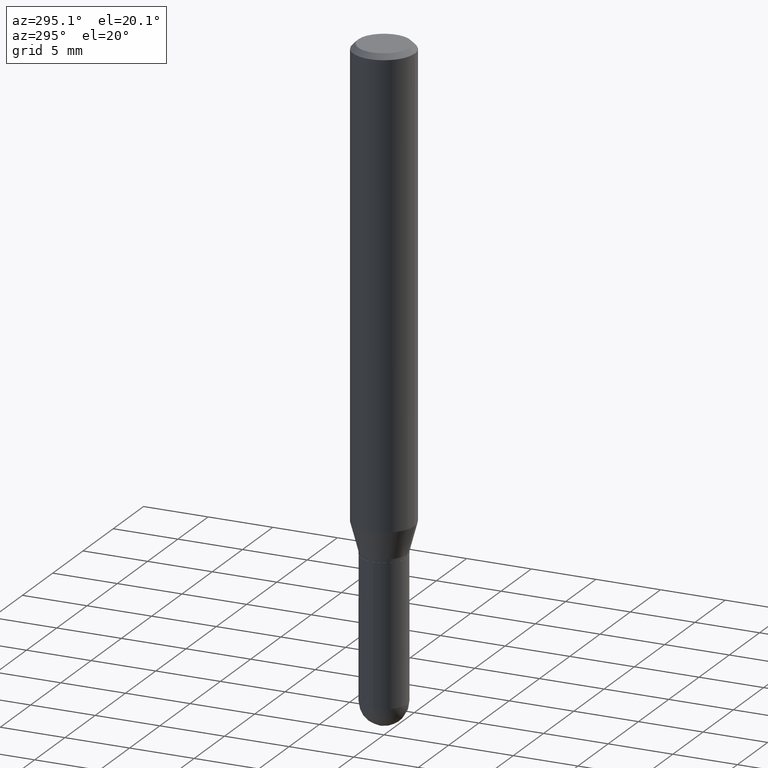
[diagram: clean part render]
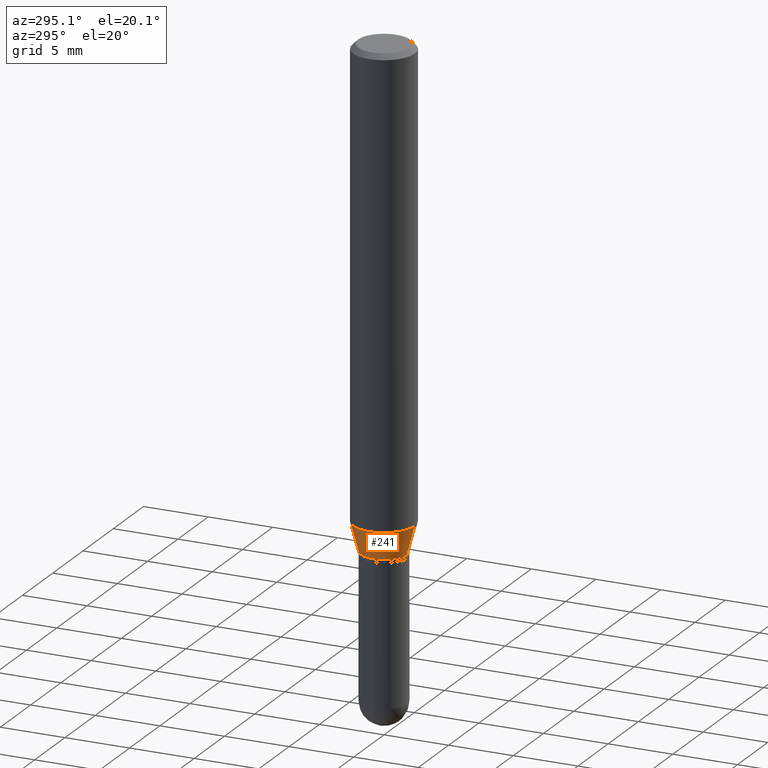
[diagram: same view with one face highlighted and labeled with its STEP entity id]
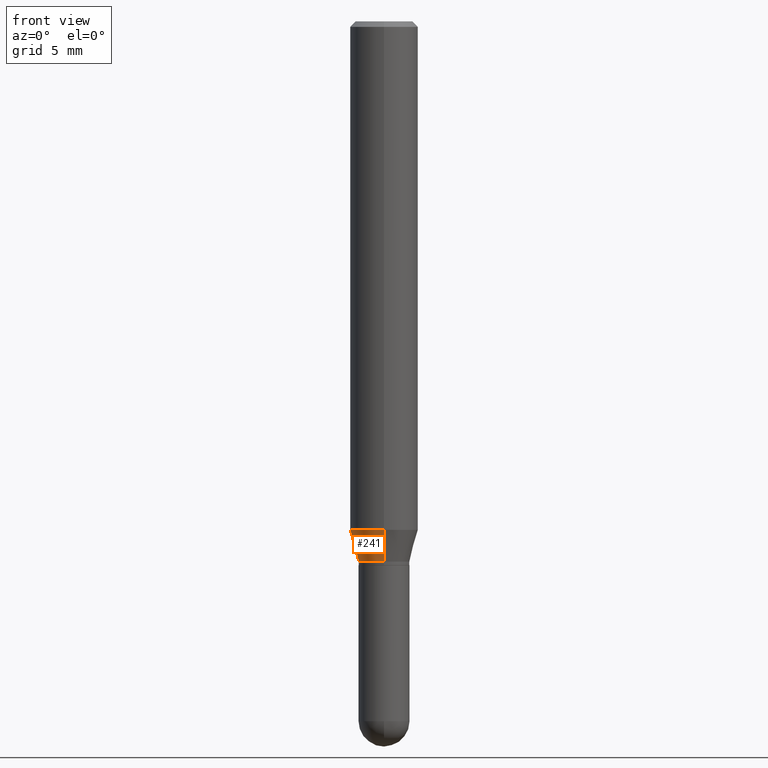
[diagram: same view with one face highlighted and labeled with its STEP entity id]
A machine part, auxiliary view. The second image highlights one B-rep face of the part: STEP entity #241.
A second angle (front view) of the same face is appended — the face is thin or edge-on in the first view.
In plain terms, the highlighted conical surface has half-angle 15 deg.
Its self-contained STEP definition (entity closure, byte-faithful):
#6 = ORIENTED_EDGE ( 'NONE', *, *, #335, .T. ) ;
#31 = CARTESIAN_POINT ( 'NONE',  ( -4.909022762413059973E-16, -0.07030000000000491411, -1.489999999999999325 ) ) ;
#38 = DIRECTION ( 'NONE',  ( 1.839019923739605837E-15, 0.2588190451025257355, 0.9659258262890669799 ) ) ;
#67 = DIRECTION ( 'NONE',  ( -2.445022562880343100E-29, 3.492120384654201603E-15, 1.000000000000000000 ) ) ;
#82 = DIRECTION ( 'NONE',  ( -1.807323732225335661E-15, -0.2588190451025189631, 0.9659258262890687563 ) ) ;
#101 = VERTEX_POINT ( 'NONE', #262 ) ;
#107 = AXIS2_PLACEMENT_3D ( 'NONE', #331, #67, #508 ) ;
#108 = DIRECTION ( 'NONE',  ( -2.445022562880343100E-29, 3.492120384654201603E-15, 1.000000000000000000 ) ) ;
#110 = DIRECTION ( 'NONE',  ( -6.982962677686265922E-15, -1.000000000000000000, 2.913971193241880372E-15 ) ) ;
#122 = VERTEX_POINT ( 'NONE', #254 ) ;
#156 = EDGE_CURVE ( 'NONE', #218, #447, #437, .T. ) ;
#157 = LINE ( 'NONE', #264, #191 ) ;
#183 = CIRCLE ( 'NONE', #252, 0.09375000000000001388 ) ;
#191 = VECTOR ( 'NONE', #38, 39.37007874015748143 ) ;
#218 = VERTEX_POINT ( 'NONE', #417 ) ;
#241 = ADVANCED_FACE ( 'NONE', ( #329 ), #427, .T. ) ;
#252 = AXIS2_PLACEMENT_3D ( 'NONE', #468, #108, #110 ) ;
#254 = CARTESIAN_POINT ( 'NONE',  ( -6.546527510330530901E-16, -0.09375000000000488498, -1.402483408562508638 ) ) ;
#262 = CARTESIAN_POINT ( 'NONE',  ( 6.661338147751283383E-16, 0.09374999999999512890, -1.402483408562509304 ) ) ;
#264 = CARTESIAN_POINT ( 'NONE',  ( 4.995115432393847559E-16, 0.07029999999999450577, -1.489999999999999991 ) ) ;
#300 = EDGE_LOOP ( 'NONE', ( #498, #368, #6, #315 ) ) ;
#301 = DIRECTION ( 'NONE',  ( -6.982962677686265922E-15, -1.000000000000000000, 3.885985766236521163E-15 ) ) ;
#315 = ORIENTED_EDGE ( 'NONE', *, *, #410, .F. ) ;
#319 = CARTESIAN_POINT ( 'NONE',  ( -4.909022762413059973E-16, -0.07030000000000491411, -1.489999999999999325 ) ) ;
#329 = FACE_OUTER_BOUND ( 'NONE', #300, .T. ) ;
#331 = CARTESIAN_POINT ( 'NONE',  ( 3.643083618691710256E-29, -5.203259373134758290E-15, -1.489999999999999769 ) ) ;
#335 = EDGE_CURVE ( 'NONE', #447, #122, #510, .T. ) ;
#368 = ORIENTED_EDGE ( 'NONE', *, *, #156, .T. ) ;
#379 = DIRECTION ( 'NONE',  ( -2.445022562880343100E-29, 3.492120384654201603E-15, 1.000000000000000000 ) ) ;
#384 = AXIS2_PLACEMENT_3D ( 'NONE', #459, #379, #301 ) ;
#403 = EDGE_CURVE ( 'NONE', #218, #101, #157, .T. ) ;
#410 = EDGE_CURVE ( 'NONE', #101, #122, #183, .T. ) ;
#417 = CARTESIAN_POINT ( 'NONE',  ( 5.828226790072563992E-16, 0.07029999999999450577, -1.489999999999999991 ) ) ;
#427 = CONICAL_SURFACE ( 'NONE', #107, 0.07029999999999970994, 0.2617993877991510732 ) ;
#437 = CIRCLE ( 'NONE', #384, 0.07029999999999970994 ) ;
#447 = VERTEX_POINT ( 'NONE', #319 ) ;
#459 = CARTESIAN_POINT ( 'NONE',  ( 3.643083618691710256E-29, -5.203259373134758290E-15, -1.489999999999999769 ) ) ;
#468 = CARTESIAN_POINT ( 'NONE',  ( 3.429103578000664545E-29, -4.897640900180445107E-15, -1.402483408562508860 ) ) ;
#477 = VECTOR ( 'NONE', #82, 39.37007874015748854 ) ;
#498 = ORIENTED_EDGE ( 'NONE', *, *, #403, .F. ) ;
#508 = DIRECTION ( 'NONE',  ( -6.982962677686265922E-15, -1.000000000000000000, 3.885985766236521163E-15 ) ) ;
#510 = LINE ( 'NONE', #31, #477 ) ;